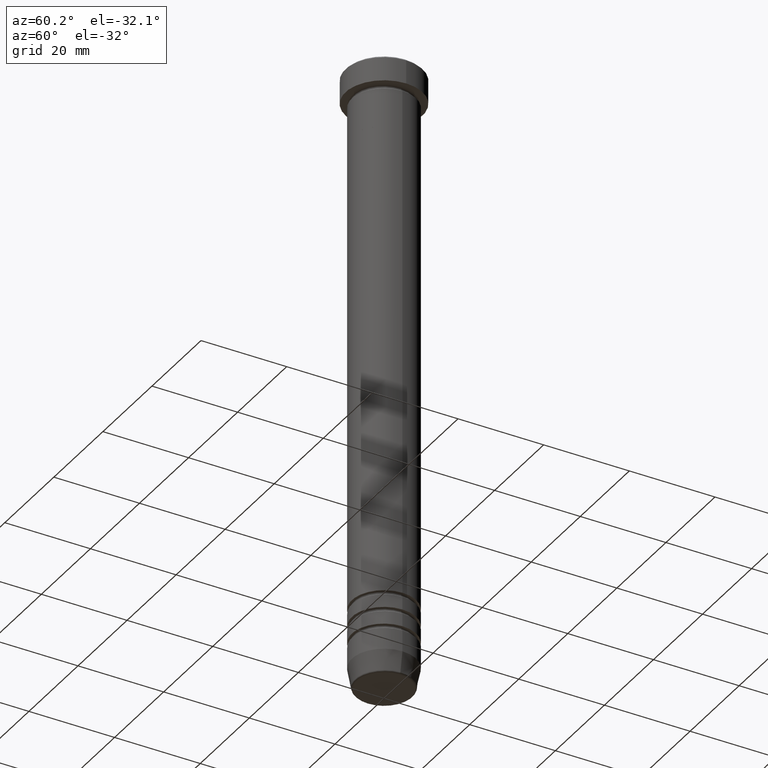
[diagram: clean part render]
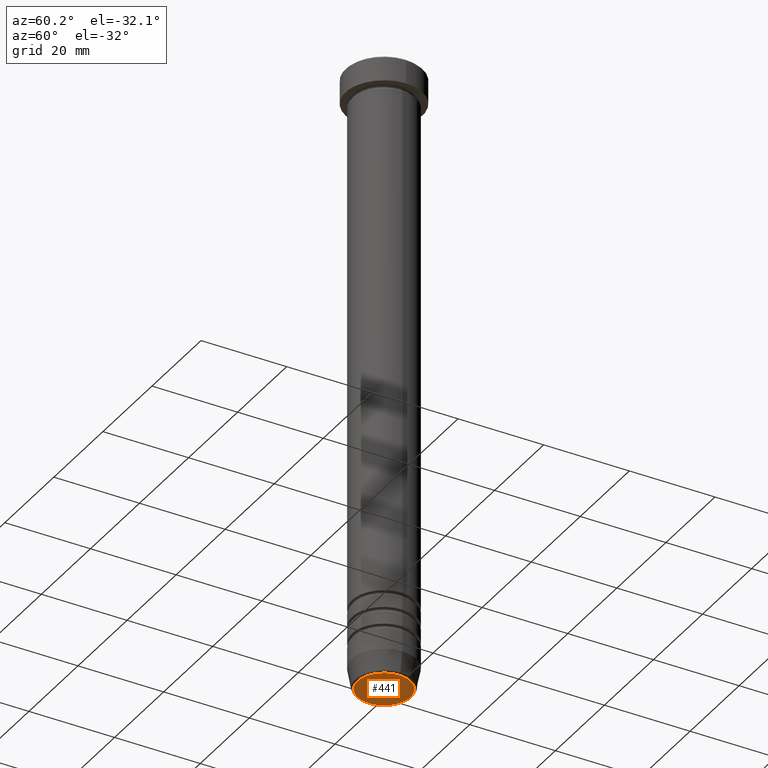
[diagram: same view with one face highlighted and labeled with its STEP entity id]
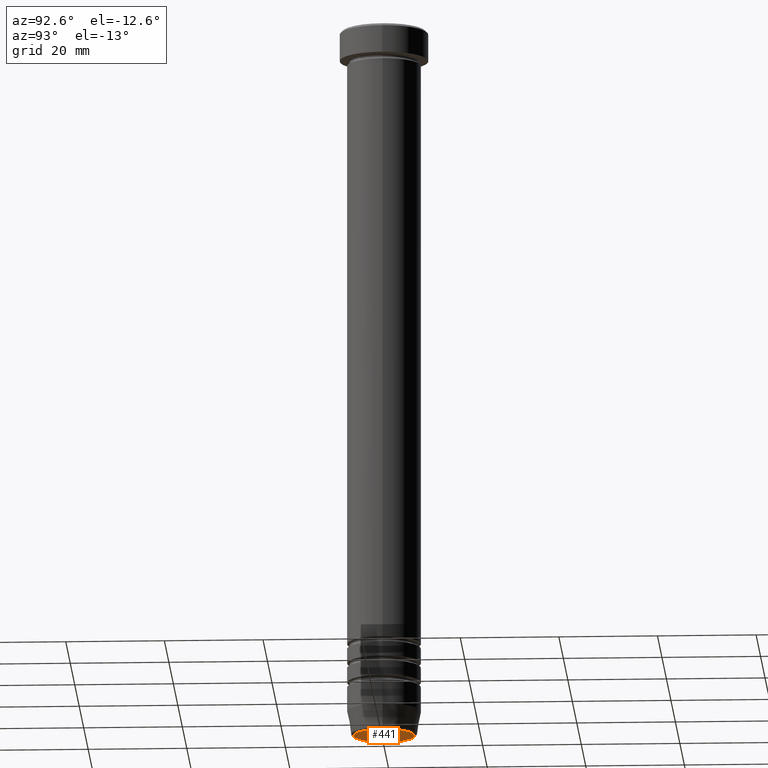
[diagram: same view with one face highlighted and labeled with its STEP entity id]
A machine part, auxiliary view. The second image highlights one B-rep face of the part: STEP entity #441.
A second angle (auxiliary view) of the same face is appended — the face is thin or edge-on in the first view.
In plain terms, the highlighted planar face has unit normal (0, -0, 1).
Its self-contained STEP definition (entity closure, byte-faithful):
#39 = DIRECTION ( 'NONE',  ( 0.000000000000000000, 0.000000000000000000, -1.000000000000000000 ) ) ;
#144 = CIRCLE ( 'NONE', #261, 6.198815280869030886 ) ;
#255 = DIRECTION ( 'NONE',  ( 0.000000000000000000, -0.000000000000000000, 1.000000000000000000 ) ) ;
#261 = AXIS2_PLACEMENT_3D ( 'NONE', #301, #39, #566 ) ;
#301 = CARTESIAN_POINT ( 'NONE',  ( 0.000000000000000000, 0.000000000000000000, -146.0000000000000284 ) ) ;
#338 = ORIENTED_EDGE ( 'NONE', *, *, #490, .T. ) ;
#353 = DIRECTION ( 'NONE',  ( 1.000000000000000000, 0.000000000000000000, 0.000000000000000000 ) ) ;
#371 = CIRCLE ( 'NONE', #411, 6.198815280869030886 ) ;
#411 = AXIS2_PLACEMENT_3D ( 'NONE', #1096, #885, #912 ) ;
#441 = ADVANCED_FACE ( 'NONE', ( #975 ), #984, .F. ) ;
#490 = EDGE_CURVE ( 'NONE', #1063, #709, #371, .T. ) ;
#566 = DIRECTION ( 'NONE',  ( 1.000000000000000000, 0.000000000000000000, 0.000000000000000000 ) ) ;
#624 = CARTESIAN_POINT ( 'NONE',  ( -6.198815280869030886, 7.892869707847435500E-16, -146.0000000000000284 ) ) ;
#639 = CARTESIAN_POINT ( 'NONE',  ( 6.198815280869030886, 0.000000000000000000, -146.0000000000000284 ) ) ;
#709 = VERTEX_POINT ( 'NONE', #639 ) ;
#724 = EDGE_CURVE ( 'NONE', #709, #1063, #144, .T. ) ;
#782 = ORIENTED_EDGE ( 'NONE', *, *, #724, .T. ) ;
#885 = DIRECTION ( 'NONE',  ( 0.000000000000000000, 0.000000000000000000, -1.000000000000000000 ) ) ;
#895 = CARTESIAN_POINT ( 'NONE',  ( 0.000000000000000000, 1.059319481262460767E-14, -146.0000000000000284 ) ) ;
#912 = DIRECTION ( 'NONE',  ( 1.000000000000000000, 0.000000000000000000, 0.000000000000000000 ) ) ;
#973 = AXIS2_PLACEMENT_3D ( 'NONE', #895, #255, #353 ) ;
#975 = FACE_OUTER_BOUND ( 'NONE', #1041, .T. ) ;
#984 = PLANE ( 'NONE',  #973 ) ;
#1041 = EDGE_LOOP ( 'NONE', ( #782, #338 ) ) ;
#1063 = VERTEX_POINT ( 'NONE', #624 ) ;
#1096 = CARTESIAN_POINT ( 'NONE',  ( 0.000000000000000000, 0.000000000000000000, -146.0000000000000284 ) ) ;